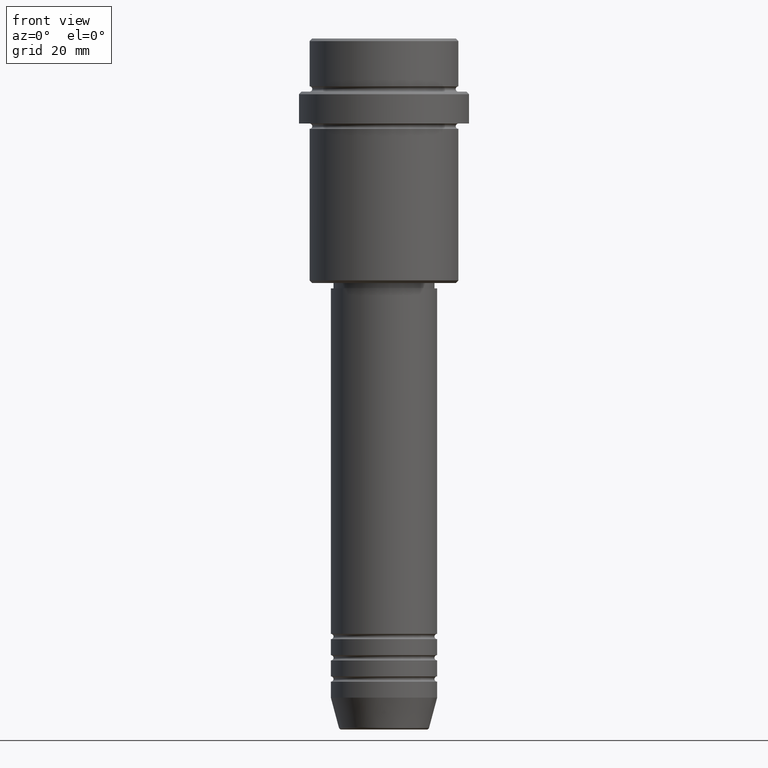
[diagram: clean part render]
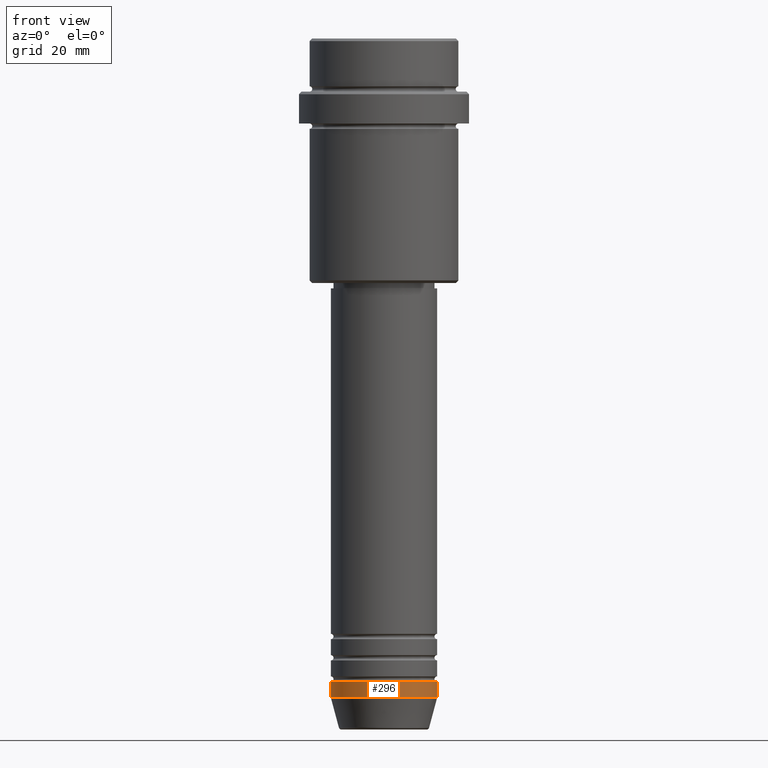
[diagram: same view with one face highlighted and labeled with its STEP entity id]
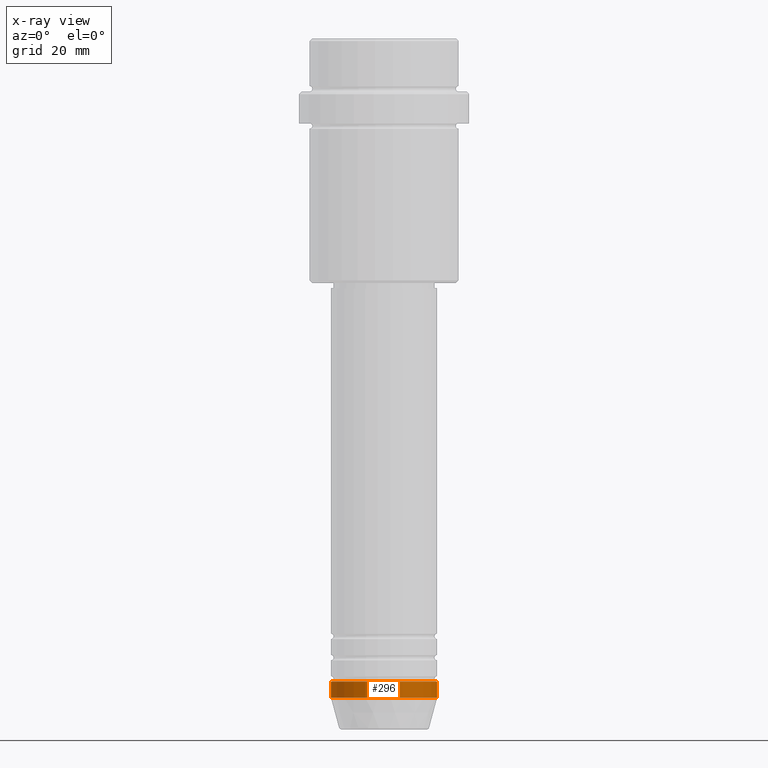
[diagram: x-ray of the same camera — body ghosted, the highlighted face saturated]
A machine part, front view. The second image highlights one B-rep face of the part: STEP entity #296.
The next image is the same camera in x-ray: the body ghosted, the highlighted face saturated — about 0% of this face is hidden behind the body in this view.
In plain terms, the highlighted cylindrical surface (partial cylindrical patch) has radius 10 mm, axis along (-0, -0, 1).
Its self-contained STEP definition (entity closure, byte-faithful):
#20 = CIRCLE ( 'NONE', #221, 10.00000000000000000 ) ;
#76 = DIRECTION ( 'NONE',  ( -0.000000000000000000, -0.000000000000000000, 1.000000000000000000 ) ) ;
#159 = DIRECTION ( 'NONE',  ( 1.000000000000000000, 0.000000000000000000, 0.000000000000000000 ) ) ;
#175 = AXIS2_PLACEMENT_3D ( 'NONE', #1265, #76, #159 ) ;
#194 = DIRECTION ( 'NONE',  ( 1.000000000000000000, 0.000000000000000000, 0.000000000000000000 ) ) ;
#220 = AXIS2_PLACEMENT_3D ( 'NONE', #1271, #929, #944 ) ;
#221 = AXIS2_PLACEMENT_3D ( 'NONE', #959, #300, #194 ) ;
#223 = VERTEX_POINT ( 'NONE', #683 ) ;
#296 = ADVANCED_FACE ( 'NONE', ( #317 ), #1154, .T. ) ;
#300 = DIRECTION ( 'NONE',  ( -0.000000000000000000, -0.000000000000000000, 1.000000000000000000 ) ) ;
#317 = FACE_OUTER_BOUND ( 'NONE', #823, .T. ) ;
#328 = EDGE_CURVE ( 'NONE', #928, #951, #819, .T. ) ;
#366 = CARTESIAN_POINT ( 'NONE',  ( 10.00000000000000000, 0.000000000000000000, -121.0000000000000000 ) ) ;
#440 = EDGE_CURVE ( 'NONE', #223, #1407, #1332, .T. ) ;
#466 = CARTESIAN_POINT ( 'NONE',  ( -10.00000000000000000, 1.224646799147353256E-15, 0.000000000000000000 ) ) ;
#528 = CARTESIAN_POINT ( 'NONE',  ( 10.00000000000000000, 0.000000000000000000, 0.000000000000000000 ) ) ;
#616 = DIRECTION ( 'NONE',  ( -0.000000000000000000, -0.000000000000000000, 1.000000000000000000 ) ) ;
#683 = CARTESIAN_POINT ( 'NONE',  ( -10.00000000000000000, 1.224646799147353256E-15, -124.0000000000000000 ) ) ;
#734 = VECTOR ( 'NONE', #989, 1000.000000000000000 ) ;
#740 = EDGE_CURVE ( 'NONE', #1407, #951, #20, .T. ) ;
#779 = CIRCLE ( 'NONE', #175, 10.00000000000000000 ) ;
#792 = ORIENTED_EDGE ( 'NONE', *, *, #328, .T. ) ;
#819 = LINE ( 'NONE', #528, #920 ) ;
#823 = EDGE_LOOP ( 'NONE', ( #1281, #1192, #792, #852 ) ) ;
#852 = ORIENTED_EDGE ( 'NONE', *, *, #740, .F. ) ;
#920 = VECTOR ( 'NONE', #616, 1000.000000000000000 ) ;
#928 = VERTEX_POINT ( 'NONE', #1215 ) ;
#929 = DIRECTION ( 'NONE',  ( -0.000000000000000000, -0.000000000000000000, 1.000000000000000000 ) ) ;
#944 = DIRECTION ( 'NONE',  ( 1.000000000000000000, 0.000000000000000000, 0.000000000000000000 ) ) ;
#951 = VERTEX_POINT ( 'NONE', #366 ) ;
#959 = CARTESIAN_POINT ( 'NONE',  ( 0.000000000000000000, 0.000000000000000000, -121.0000000000000000 ) ) ;
#989 = DIRECTION ( 'NONE',  ( -0.000000000000000000, -0.000000000000000000, 1.000000000000000000 ) ) ;
#1080 = CARTESIAN_POINT ( 'NONE',  ( -10.00000000000000000, 1.224646799147353256E-15, -121.0000000000000000 ) ) ;
#1154 = CYLINDRICAL_SURFACE ( 'NONE', #220, 10.00000000000000000 ) ;
#1192 = ORIENTED_EDGE ( 'NONE', *, *, #1311, .T. ) ;
#1215 = CARTESIAN_POINT ( 'NONE',  ( 10.00000000000000000, 0.000000000000000000, -124.0000000000000000 ) ) ;
#1265 = CARTESIAN_POINT ( 'NONE',  ( 0.000000000000000000, 0.000000000000000000, -124.0000000000000000 ) ) ;
#1271 = CARTESIAN_POINT ( 'NONE',  ( 0.000000000000000000, 0.000000000000000000, 0.000000000000000000 ) ) ;
#1281 = ORIENTED_EDGE ( 'NONE', *, *, #440, .F. ) ;
#1311 = EDGE_CURVE ( 'NONE', #223, #928, #779, .T. ) ;
#1332 = LINE ( 'NONE', #466, #734 ) ;
#1407 = VERTEX_POINT ( 'NONE', #1080 ) ;